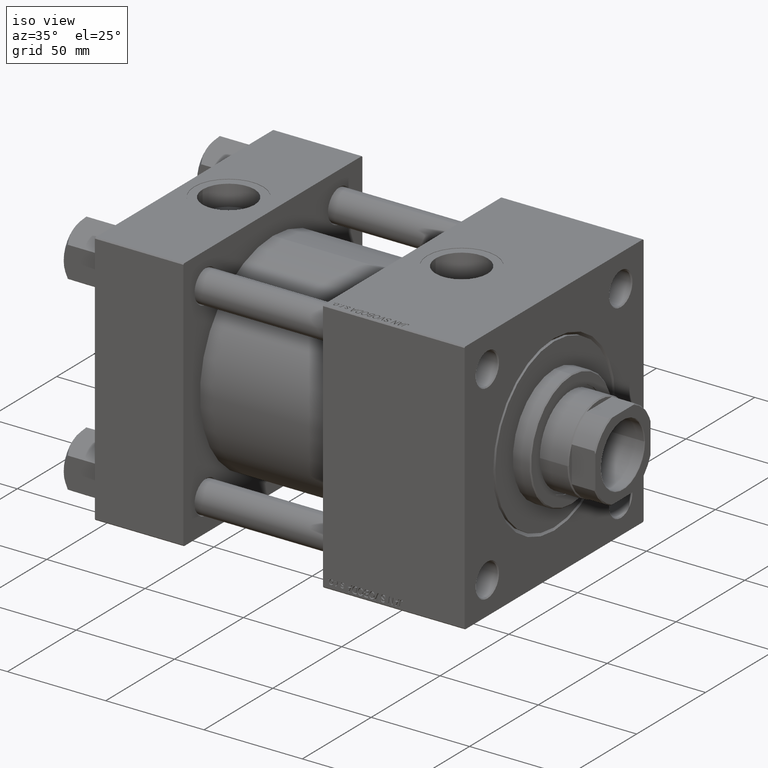
[diagram: clean part render]
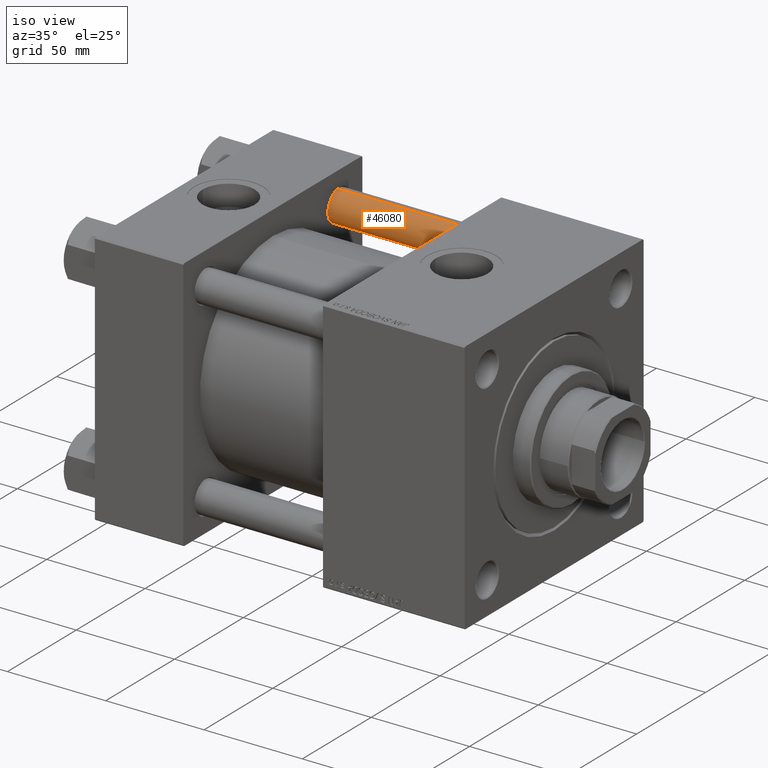
[diagram: same view with one face highlighted and labeled with its STEP entity id]
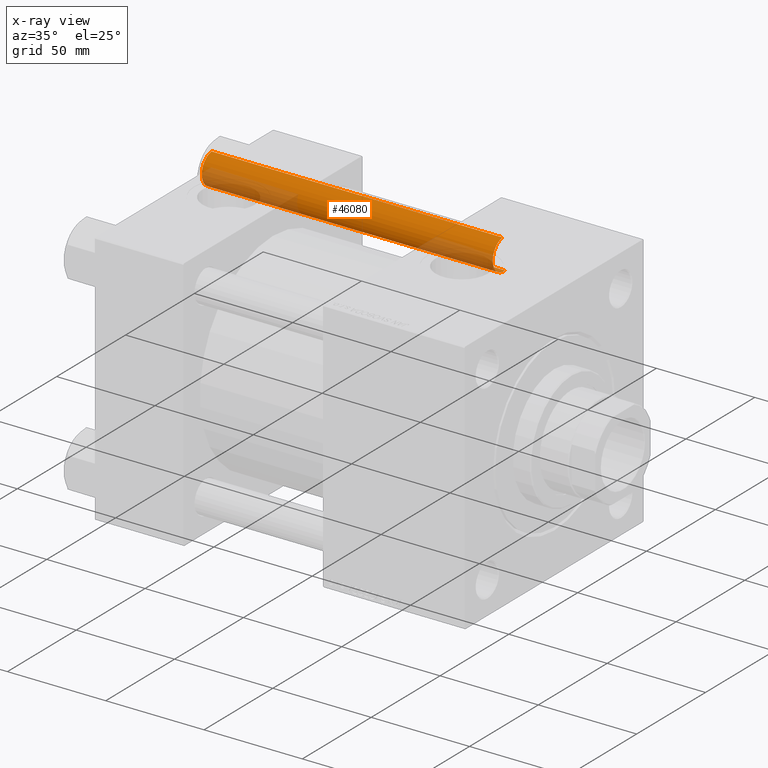
[diagram: x-ray of the same camera — body ghosted, the highlighted face saturated]
A machine part, iso view. The second image highlights one B-rep face of the part: STEP entity #46080.
The next image is the same camera in x-ray: the body ghosted, the highlighted face saturated — about 28% of this face is hidden behind the body in this view.
In plain terms, the highlighted cylindrical surface (edge-blend (fillet) strip) has radius 8 mm, axis along (-1, 0, 0).
Its self-contained STEP definition (entity closure, byte-faithful):
#105 = EDGE_LOOP ( 'NONE', ( #20866, #13563, #15146, #23375 ) ) ;
#2549 = AXIS2_PLACEMENT_3D ( 'NONE', #16216, #46929, #34877 ) ;
#4036 = VECTOR ( 'NONE', #10144, 1000.000000000000000 ) ;
#4076 = EDGE_CURVE ( 'NONE', #34692, #27802, #25944, .T. ) ;
#5951 = DIRECTION ( 'NONE',  ( -0.000000000000000000, -0.000000000000000000, 1.000000000000000000 ) ) ;
#6333 = DIRECTION ( 'NONE',  ( 1.000000000000000000, 0.000000000000000000, 0.000000000000000000 ) ) ;
#10144 = DIRECTION ( 'NONE',  ( -0.000000000000000000, -0.000000000000000000, -1.000000000000000000 ) ) ;
#13563 = ORIENTED_EDGE ( 'NONE', *, *, #25576, .T. ) ;
#14269 = DIRECTION ( 'NONE',  ( 0.000000000000000000, 0.000000000000000000, -1.000000000000000000 ) ) ;
#14798 = CARTESIAN_POINT ( 'NONE',  ( 0.000000000000000000, 0.000000000000000000, 148.5000000000000000 ) ) ;
#15146 = ORIENTED_EDGE ( 'NONE', *, *, #17041, .T. ) ;
#16216 = CARTESIAN_POINT ( 'NONE',  ( 0.000000000000000000, 0.000000000000000000, 149.0000000000000000 ) ) ;
#17041 = EDGE_CURVE ( 'NONE', #35857, #35714, #32929, .T. ) ;
#20866 = ORIENTED_EDGE ( 'NONE', *, *, #4076, .F. ) ;
#23138 = CYLINDRICAL_SURFACE ( 'NONE', #2549, 8.000000000000000000 ) ;
#23375 = ORIENTED_EDGE ( 'NONE', *, *, #34793, .T. ) ;
#24126 = AXIS2_PLACEMENT_3D ( 'NONE', #14798, #14269, #6333 ) ;
#24443 = AXIS2_PLACEMENT_3D ( 'NONE', #48476, #5951, #37436 ) ;
#25576 = EDGE_CURVE ( 'NONE', #34692, #35857, #46162, .T. ) ;
#25882 = CARTESIAN_POINT ( 'NONE',  ( -8.000000000000000000, 0.000000000000000000, 0.5000000000000281997 ) ) ;
#25944 = LINE ( 'NONE', #26451, #45356 ) ;
#26451 = CARTESIAN_POINT ( 'NONE',  ( 8.000000000000000000, 9.797174393178825657E-16, 149.0000000000000000 ) ) ;
#27802 = VERTEX_POINT ( 'NONE', #49761 ) ;
#28791 = CARTESIAN_POINT ( 'NONE',  ( 8.000000000000000000, 9.797174393178825657E-16, 148.5000000000000000 ) ) ;
#29102 = CARTESIAN_POINT ( 'NONE',  ( -8.000000000000000000, 0.000000000000000000, 149.0000000000000000 ) ) ;
#29967 = CARTESIAN_POINT ( 'NONE',  ( -8.000000000000000000, 0.000000000000000000, 148.5000000000000000 ) ) ;
#32929 = LINE ( 'NONE', #29102, #4036 ) ;
#34692 = VERTEX_POINT ( 'NONE', #28791 ) ;
#34793 = EDGE_CURVE ( 'NONE', #35714, #27802, #43999, .T. ) ;
#34877 = DIRECTION ( 'NONE',  ( -1.000000000000000000, 0.000000000000000000, 0.000000000000000000 ) ) ;
#35714 = VERTEX_POINT ( 'NONE', #25882 ) ;
#35857 = VERTEX_POINT ( 'NONE', #29967 ) ;
#37436 = DIRECTION ( 'NONE',  ( 1.000000000000000000, 0.000000000000000000, 0.000000000000000000 ) ) ;
#39493 = FACE_OUTER_BOUND ( 'NONE', #105, .T. ) ;
#41543 = DIRECTION ( 'NONE',  ( -0.000000000000000000, -0.000000000000000000, -1.000000000000000000 ) ) ;
#43999 = CIRCLE ( 'NONE', #24443, 8.000000000000000000 ) ;
#45356 = VECTOR ( 'NONE', #41543, 1000.000000000000000 ) ;
#46080 = ADVANCED_FACE ( 'NONE', ( #39493 ), #23138, .T. ) ;
#46162 = CIRCLE ( 'NONE', #24126, 8.000000000000000000 ) ;
#46929 = DIRECTION ( 'NONE',  ( -0.000000000000000000, -0.000000000000000000, -1.000000000000000000 ) ) ;
#48476 = CARTESIAN_POINT ( 'NONE',  ( 0.000000000000000000, 0.000000000000000000, 0.5000000000000281997 ) ) ;
#49761 = CARTESIAN_POINT ( 'NONE',  ( 8.000000000000000000, 9.797174393178825657E-16, 0.5000000000000281997 ) ) ;